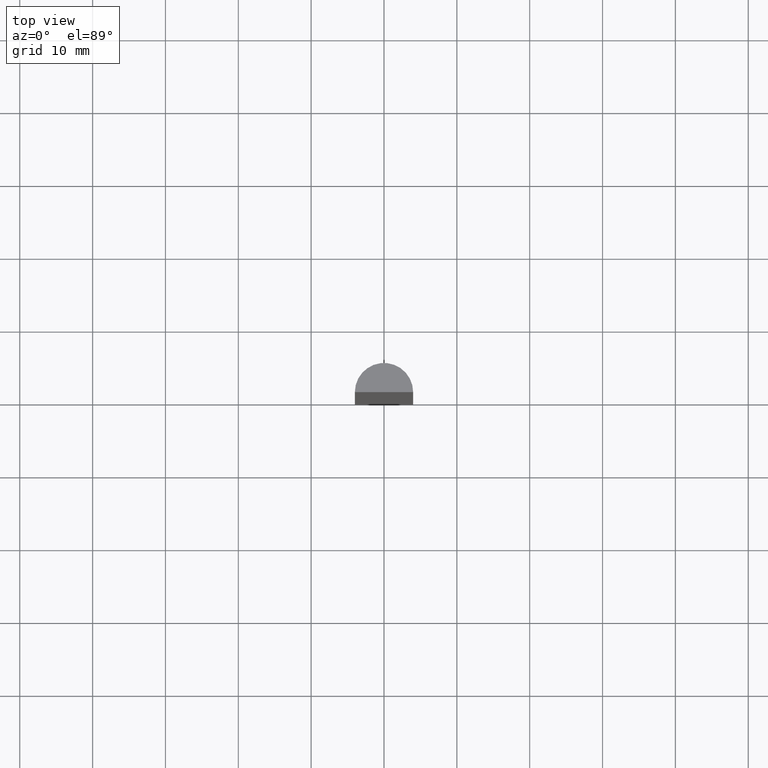
[diagram: clean part render]
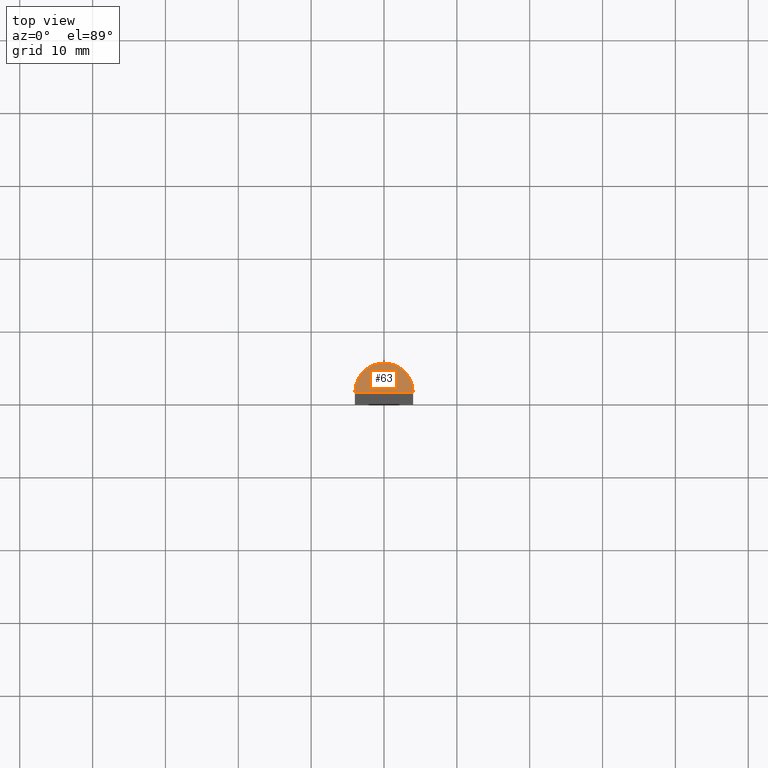
[diagram: same view with one face highlighted and labeled with its STEP entity id]
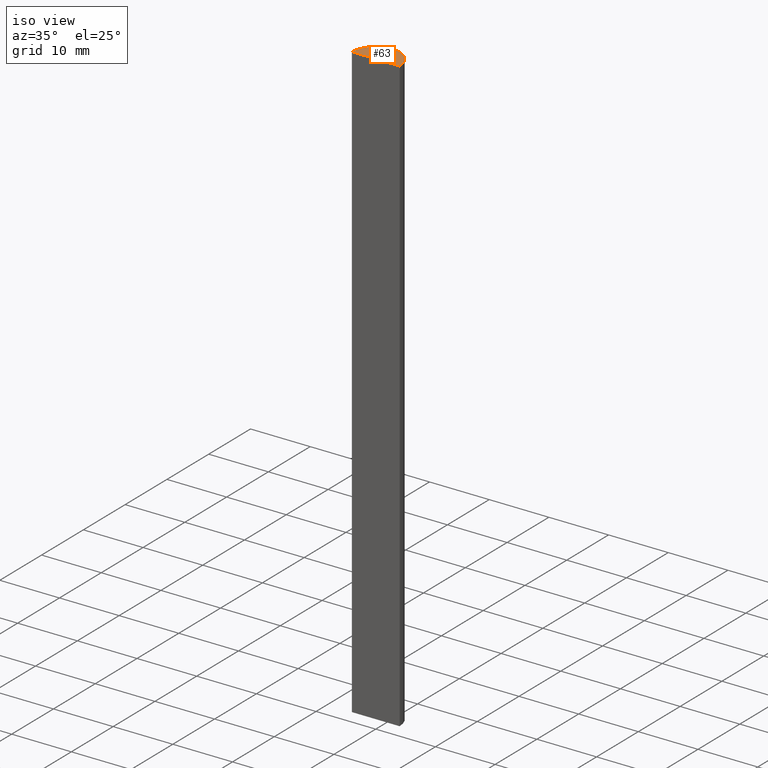
[diagram: same view with one face highlighted and labeled with its STEP entity id]
A machine part, top view. The second image highlights one B-rep face of the part: STEP entity #63.
A second angle (iso view) of the same face is appended — the face is thin or edge-on in the first view.
In plain terms, the highlighted planar face has unit normal (0, 0, 1).
Its self-contained STEP definition (entity closure, byte-faithful):
#20=FACE_OUTER_BOUND('',#24,.T.);
#24=EDGE_LOOP('',(#55,#56));
#28=LINE('',#121,#32);
#32=VECTOR('',#105,10.);
#34=CIRCLE('',#87,4.);
#37=VERTEX_POINT('',#115);
#38=VERTEX_POINT('',#116);
#41=EDGE_CURVE('',#37,#38,#34,.T.);
#44=EDGE_CURVE('',#38,#37,#28,.T.);
#55=ORIENTED_EDGE('',*,*,#41,.F.);
#56=ORIENTED_EDGE('',*,*,#44,.F.);
#59=PLANE('',#89);
#63=ADVANCED_FACE('',(#20),#59,.T.);
#87=AXIS2_PLACEMENT_3D('',#117,#99,#100);
#89=AXIS2_PLACEMENT_3D('',#122,#106,#107);
#99=DIRECTION('center_axis',(0.,0.,-1.));
#100=DIRECTION('ref_axis',(1.,0.,0.));
#105=DIRECTION('',(-1.,0.,0.));
#106=DIRECTION('center_axis',(0.,0.,1.));
#107=DIRECTION('ref_axis',(1.,0.,0.));
#115=CARTESIAN_POINT('',(-4.,0.,50.));
#116=CARTESIAN_POINT('',(4.,0.,50.));
#117=CARTESIAN_POINT('Origin',(0.,0.,50.));
#121=CARTESIAN_POINT('',(-4.,0.,50.));
#122=CARTESIAN_POINT('Origin',(1.14913547993443E-16,1.40283630960824,50.));